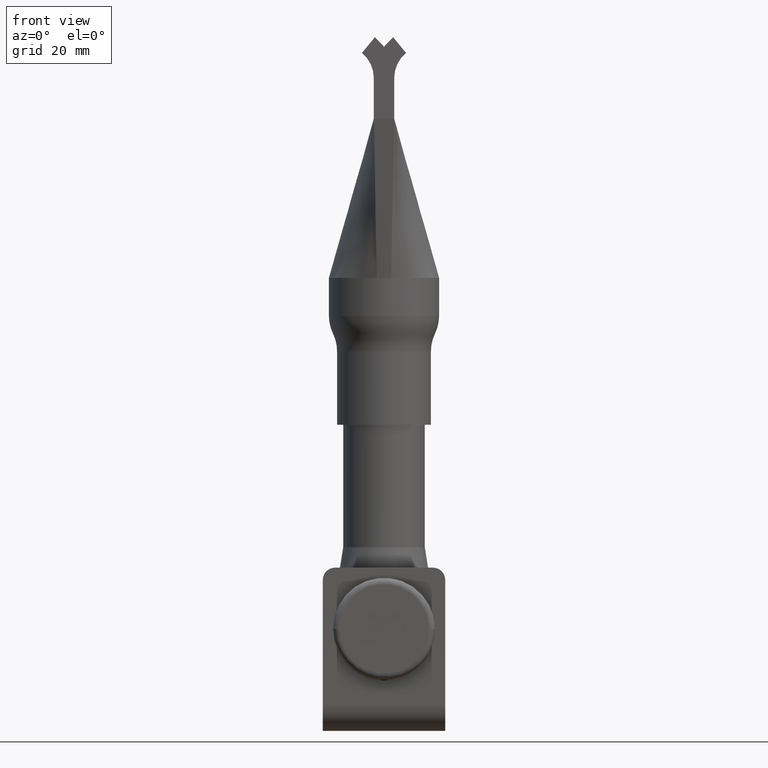
[diagram: clean part render]
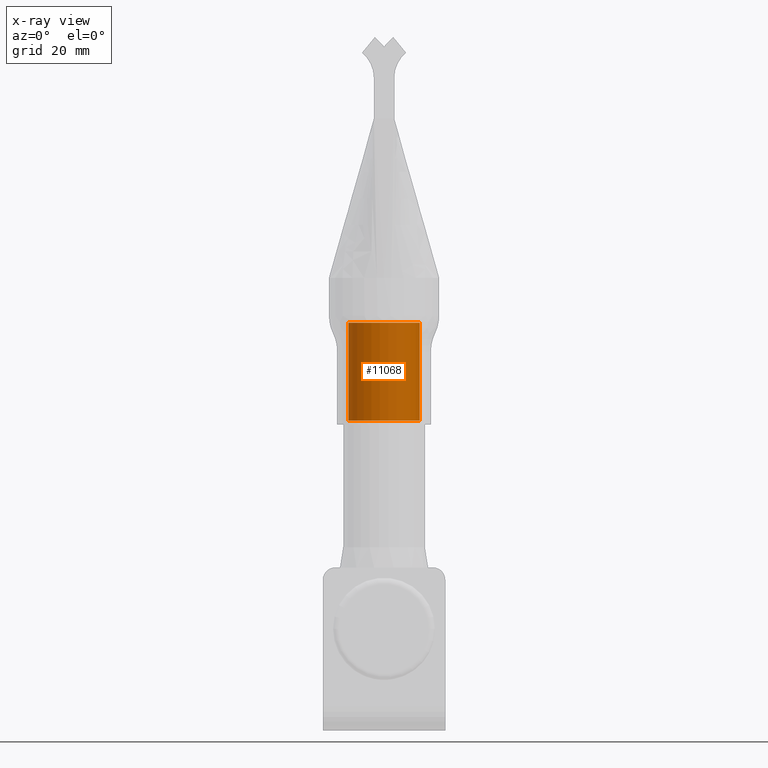
[diagram: x-ray — body ghosted, one internal face saturated and labeled with its STEP entity id]
A machine part, front view, then the same camera in x-ray: the body is ghosted and one INTERNAL B-rep face — a face not visible from any outside direction — is saturated and labeled: STEP entity #11068.
In plain terms, the highlighted cylindrical surface (edge-blend (fillet) strip) has radius 8.75 mm, axis along (-0, -0, -1).
Its self-contained STEP definition (entity closure, byte-faithful):
#3574 = DIRECTION ( 'NONE',  ( -1.000000000000000000, 0.0000000000000000000, 0.0000000000000000000 ) ) ;
#3874 = VERTEX_POINT ( 'NONE', #16268 ) ;
#4423 = EDGE_CURVE ( 'NONE', #13008, #18518, #16852, .T. ) ;
#4495 = DIRECTION ( 'NONE',  ( 0.0000000000000000000, 0.0000000000000000000, -1.000000000000000000 ) ) ;
#4857 = ORIENTED_EDGE ( 'NONE', *, *, #18803, .F. ) ;
#4886 = FACE_OUTER_BOUND ( 'NONE', #11763, .T. ) ;
#5979 = CIRCLE ( 'NONE', #18426, 8.749999999999996400 ) ;
#6829 = CARTESIAN_POINT ( 'NONE',  ( 8.749999999999996400, 1.071565949253933500E-015, 0.0000000000000000000 ) ) ;
#7008 = DIRECTION ( 'NONE',  ( -0.0000000000000000000, -0.0000000000000000000, -1.000000000000000000 ) ) ;
#7688 = VERTEX_POINT ( 'NONE', #9693 ) ;
#7949 = ORIENTED_EDGE ( 'NONE', *, *, #8733, .T. ) ;
#8287 = CARTESIAN_POINT ( 'NONE',  ( 0.0000000000000000000, 0.0000000000000000000, 25.00000000000000000 ) ) ;
#8614 = ORIENTED_EDGE ( 'NONE', *, *, #4423, .F. ) ;
#8733 = EDGE_CURVE ( 'NONE', #13008, #3874, #17177, .T. ) ;
#9693 = CARTESIAN_POINT ( 'NONE',  ( -8.749999999999996400, 0.0000000000000000000, 1.000000000000000900 ) ) ;
#11068 = ADVANCED_FACE ( 'NONE', ( #4886 ), #16137, .F. ) ;
#11763 = EDGE_LOOP ( 'NONE', ( #8614, #7949, #16173, #4857 ) ) ;
#13008 = VERTEX_POINT ( 'NONE', #13270 ) ;
#13204 = DIRECTION ( 'NONE',  ( -0.0000000000000000000, -0.0000000000000000000, -1.000000000000000000 ) ) ;
#13270 = CARTESIAN_POINT ( 'NONE',  ( 8.749999999999994700, 1.071565949253933100E-015, 25.00000000000000000 ) ) ;
#14219 = DIRECTION ( 'NONE',  ( 1.000000000000000000, 0.0000000000000000000, 0.0000000000000000000 ) ) ;
#14786 = VECTOR ( 'NONE', #13204, 1000.000000000000000 ) ;
#16137 = CYLINDRICAL_SURFACE ( 'NONE', #17853, 8.749999999999996400 ) ;
#16149 = DIRECTION ( 'NONE',  ( -1.000000000000000000, 0.0000000000000000000, 0.0000000000000000000 ) ) ;
#16173 = ORIENTED_EDGE ( 'NONE', *, *, #20104, .T. ) ;
#16268 = CARTESIAN_POINT ( 'NONE',  ( 8.749999999999996400, 1.071565949253933500E-015, 1.000000000000000900 ) ) ;
#16477 = CARTESIAN_POINT ( 'NONE',  ( 0.0000000000000000000, 0.0000000000000000000, 1.000000000000000900 ) ) ;
#16852 = CIRCLE ( 'NONE', #24159, 8.749999999999994700 ) ;
#17177 = LINE ( 'NONE', #6829, #23776 ) ;
#17853 = AXIS2_PLACEMENT_3D ( 'NONE', #23577, #25402, #3574 ) ;
#18426 = AXIS2_PLACEMENT_3D ( 'NONE', #16477, #4495, #14219 ) ;
#18518 = VERTEX_POINT ( 'NONE', #24975 ) ;
#18803 = EDGE_CURVE ( 'NONE', #18518, #7688, #20457, .T. ) ;
#20104 = EDGE_CURVE ( 'NONE', #3874, #7688, #5979, .T. ) ;
#20457 = LINE ( 'NONE', #25124, #14786 ) ;
#23577 = CARTESIAN_POINT ( 'NONE',  ( 0.0000000000000000000, 0.0000000000000000000, 0.0000000000000000000 ) ) ;
#23776 = VECTOR ( 'NONE', #7008, 1000.000000000000000 ) ;
#24080 = DIRECTION ( 'NONE',  ( -0.0000000000000000000, -0.0000000000000000000, -1.000000000000000000 ) ) ;
#24159 = AXIS2_PLACEMENT_3D ( 'NONE', #8287, #24080, #16149 ) ;
#24975 = CARTESIAN_POINT ( 'NONE',  ( -8.749999999999994700, 0.0000000000000000000, 25.00000000000000000 ) ) ;
#25124 = CARTESIAN_POINT ( 'NONE',  ( -8.749999999999996400, 0.0000000000000000000, 0.0000000000000000000 ) ) ;
#25402 = DIRECTION ( 'NONE',  ( -0.0000000000000000000, -0.0000000000000000000, -1.000000000000000000 ) ) ;